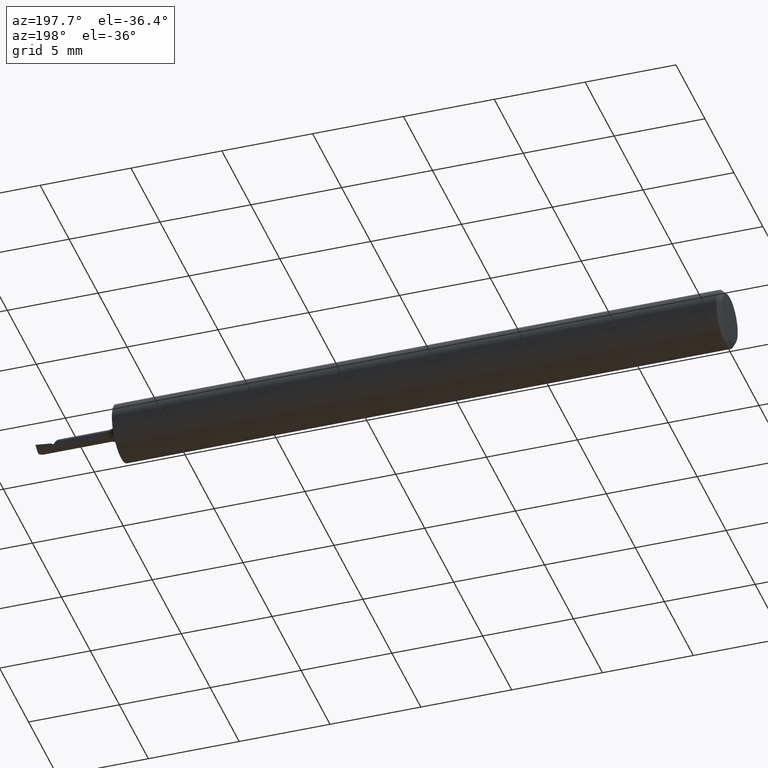
[diagram: clean part render]
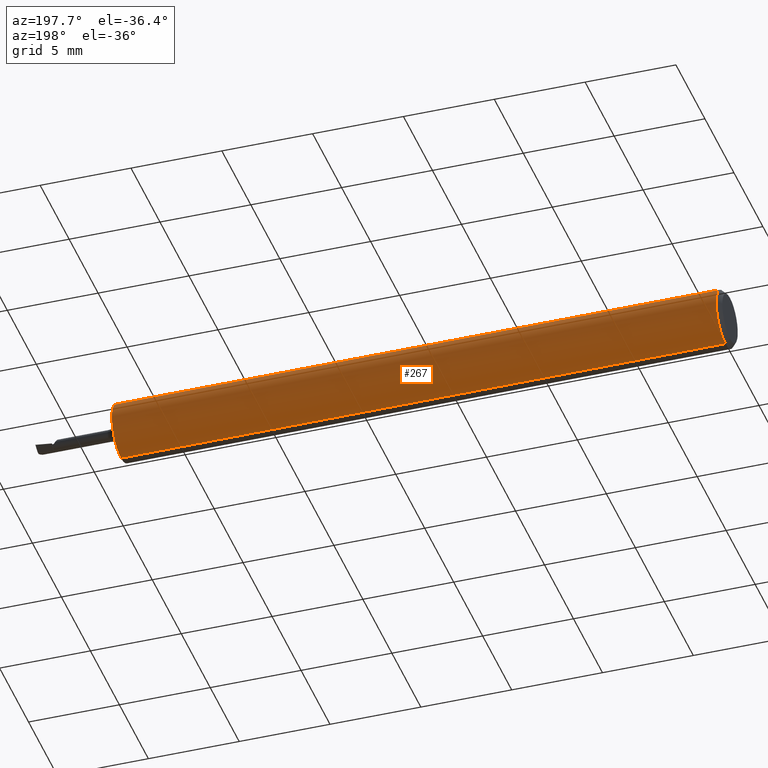
[diagram: same view with one face highlighted and labeled with its STEP entity id]
A machine part, auxiliary view. The second image highlights one B-rep face of the part: STEP entity #267.
In plain terms, the highlighted cylindrical surface (edge-blend (fillet) strip) has radius 1.5837 mm, axis along (-1, -0, -0).
Its self-contained STEP definition (entity closure, byte-faithful):
#17 = DIRECTION ( 'NONE',  ( 0.000000000000000000, 0.000000000000000000, 1.000000000000000000 ) ) ;
#18 = CARTESIAN_POINT ( 'NONE',  ( 1.320000000000000506, 0.000000000000000000, 0.000000000000000000 ) ) ;
#78 = VERTEX_POINT ( 'NONE', #98 ) ;
#98 = CARTESIAN_POINT ( 'NONE',  ( 1.320000000000000506, 0.000000000000000000, 0.06234999999999997489 ) ) ;
#103 = ORIENTED_EDGE ( 'NONE', *, *, #598, .F. ) ;
#106 = CARTESIAN_POINT ( 'NONE',  ( 0.000000000000000000, 0.000000000000000000, 0.000000000000000000 ) ) ;
#136 = AXIS2_PLACEMENT_3D ( 'NONE', #18, #448, #206 ) ;
#140 = VERTEX_POINT ( 'NONE', #220 ) ;
#144 = CARTESIAN_POINT ( 'NONE',  ( 0.000000000000000000, 0.000000000000000000, 0.06234999999999997489 ) ) ;
#154 = CIRCLE ( 'NONE', #339, 0.06235000000000000264 ) ;
#172 = VECTOR ( 'NONE', #419, 39.37007874015748143 ) ;
#206 = DIRECTION ( 'NONE',  ( 0.000000000000000000, 0.000000000000000000, -1.000000000000000000 ) ) ;
#213 = ORIENTED_EDGE ( 'NONE', *, *, #466, .F. ) ;
#220 = CARTESIAN_POINT ( 'NONE',  ( 1.320000000000000506, 7.635672792683743590E-18, -0.06234999999999997489 ) ) ;
#228 = CYLINDRICAL_SURFACE ( 'NONE', #250, 0.06234999999999997489 ) ;
#250 = AXIS2_PLACEMENT_3D ( 'NONE', #106, #357, #583 ) ;
#267 = ADVANCED_FACE ( 'NONE', ( #521 ), #228, .T. ) ;
#339 = AXIS2_PLACEMENT_3D ( 'NONE', #629, #680, #17 ) ;
#357 = DIRECTION ( 'NONE',  ( -1.000000000000000000, -0.000000000000000000, -0.000000000000000000 ) ) ;
#385 = CARTESIAN_POINT ( 'NONE',  ( 0.01000000000000000021, 0.000000000000000000, 0.06235000000000000264 ) ) ;
#419 = DIRECTION ( 'NONE',  ( -1.000000000000000000, -0.000000000000000000, -0.000000000000000000 ) ) ;
#448 = DIRECTION ( 'NONE',  ( 1.000000000000000000, 0.000000000000000000, 0.000000000000000000 ) ) ;
#456 = DIRECTION ( 'NONE',  ( -1.000000000000000000, -0.000000000000000000, -0.000000000000000000 ) ) ;
#466 = EDGE_CURVE ( 'NONE', #140, #78, #652, .T. ) ;
#472 = EDGE_CURVE ( 'NONE', #78, #643, #682, .T. ) ;
#519 = EDGE_LOOP ( 'NONE', ( #213, #616, #103, #584 ) ) ;
#521 = FACE_OUTER_BOUND ( 'NONE', #519, .T. ) ;
#565 = VECTOR ( 'NONE', #456, 39.37007874015748143 ) ;
#576 = CARTESIAN_POINT ( 'NONE',  ( 0.01000000000000000021, 7.635672792683748212E-18, -0.06235000000000000264 ) ) ;
#583 = DIRECTION ( 'NONE',  ( 0.000000000000000000, 0.000000000000000000, 1.000000000000000000 ) ) ;
#584 = ORIENTED_EDGE ( 'NONE', *, *, #472, .F. ) ;
#585 = CARTESIAN_POINT ( 'NONE',  ( 0.000000000000000000, 7.635672792683743590E-18, -0.06234999999999997489 ) ) ;
#598 = EDGE_CURVE ( 'NONE', #643, #676, #154, .T. ) ;
#616 = ORIENTED_EDGE ( 'NONE', *, *, #752, .T. ) ;
#629 = CARTESIAN_POINT ( 'NONE',  ( 0.01000000000000000021, 0.000000000000000000, 0.000000000000000000 ) ) ;
#643 = VERTEX_POINT ( 'NONE', #385 ) ;
#652 = CIRCLE ( 'NONE', #136, 0.06234999999999997489 ) ;
#654 = LINE ( 'NONE', #585, #172 ) ;
#676 = VERTEX_POINT ( 'NONE', #576 ) ;
#680 = DIRECTION ( 'NONE',  ( -1.000000000000000000, -0.000000000000000000, -0.000000000000000000 ) ) ;
#682 = LINE ( 'NONE', #144, #565 ) ;
#752 = EDGE_CURVE ( 'NONE', #140, #676, #654, .T. ) ;